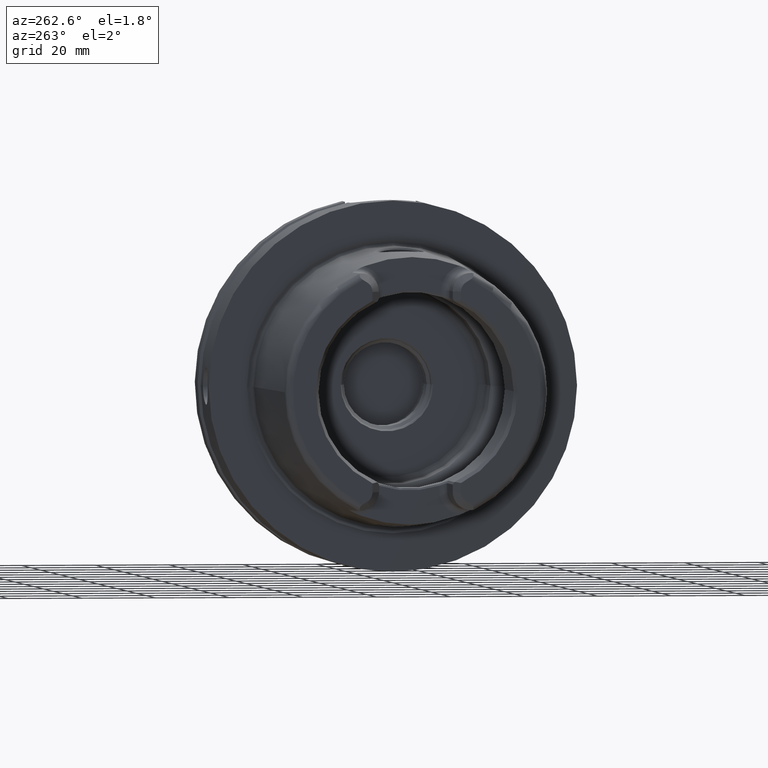
[diagram: clean part render]
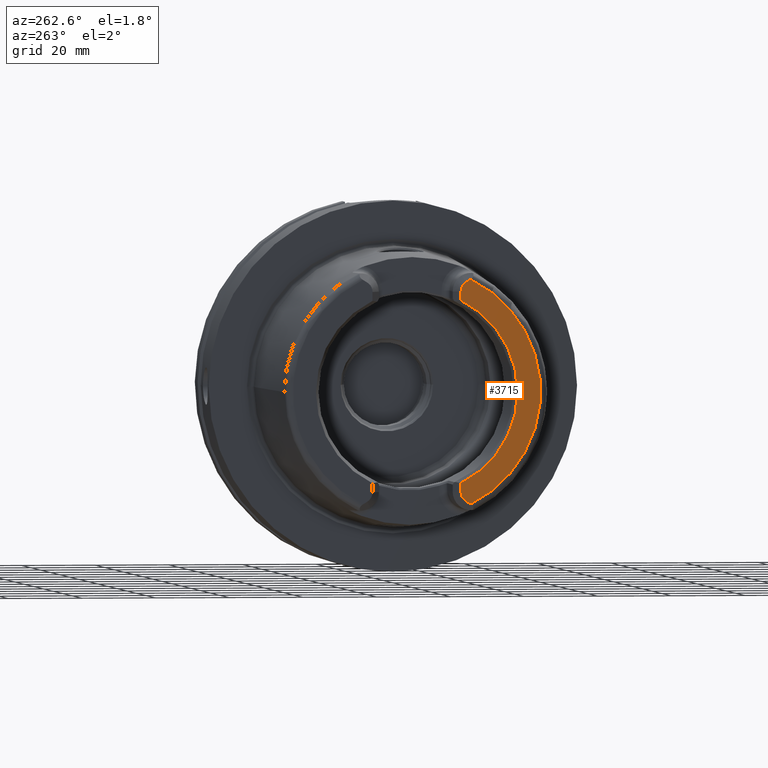
[diagram: same view with one face highlighted and labeled with its STEP entity id]
A machine part, auxiliary view. The second image highlights one B-rep face of the part: STEP entity #3715.
In plain terms, the highlighted planar face has unit normal (1, 0, 0).
Its self-contained STEP definition (entity closure, byte-faithful):
#126=DIRECTION('',(0.E0,0.E0,-1.E0));
#127=VECTOR('',#126,2.370180025047E0);
#128=CARTESIAN_POINT('',(-5.E1,-1.201E1,-2.458981997495E1));
#129=LINE('',#128,#127);
#130=DIRECTION('',(0.E0,0.E0,1.E0));
#131=VECTOR('',#130,2.370180025047E0);
#132=CARTESIAN_POINT('',(-5.E1,-1.201E1,2.458981997495E1));
#133=LINE('',#132,#131);
#134=CARTESIAN_POINT('',(-5.E1,-1.501E1,2.696E1));
#135=DIRECTION('',(1.E0,0.E0,0.E0));
#136=DIRECTION('',(0.E0,1.E0,-1.657933050107E-14));
#137=AXIS2_PLACEMENT_3D('',#134,#135,#136);
#139=DIRECTION('',(0.E0,8.533905854017E-1,-5.212720103245E-1));
#140=VECTOR('',#139,1.392150953463E0);
#141=CARTESIAN_POINT('',(-5.E1,-1.463423248617E1,3.024586108239E1));
#142=LINE('',#141,#140);
#143=DIRECTION('',(0.E0,8.533905854017E-1,5.212720103245E-1));
#144=VECTOR('',#143,1.392150953463E0);
#145=CARTESIAN_POINT('',(-5.E1,-1.463423248617E1,-3.024586108239E1));
#146=LINE('',#145,#144);
#147=CARTESIAN_POINT('',(-5.E1,-1.501E1,-2.696E1));
#148=DIRECTION('',(-1.E0,0.E0,0.E0));
#149=DIRECTION('',(0.E0,1.E0,0.E0));
#150=AXIS2_PLACEMENT_3D('',#147,#148,#149);
#197=CARTESIAN_POINT('',(-5.E1,0.E0,0.E0));
#198=DIRECTION('',(1.E0,0.E0,0.E0));
#199=DIRECTION('',(0.E0,-4.388653384185E-1,8.985528447091E-1));
#200=AXIS2_PLACEMENT_3D('',#197,#198,#199);
#359=CARTESIAN_POINT('',(-5.E1,0.E0,0.E0));
#360=DIRECTION('',(-1.E0,0.E0,0.E0));
#361=DIRECTION('',(0.E0,-4.355401503799E-1,-9.001693048572E-1));
#362=AXIS2_PLACEMENT_3D('',#359,#360,#361);
#3146=CARTESIAN_POINT('',(-5.E1,-1.201E1,2.458981997495E1));
#3147=CARTESIAN_POINT('',(-5.E1,-1.201E1,2.696E1));
#3148=VERTEX_POINT('',#3146);
#3149=VERTEX_POINT('',#3147);
#3150=CARTESIAN_POINT('',(-5.E1,-1.344618396903E1,2.952017175621E1));
#3151=VERTEX_POINT('',#3150);
#3152=CARTESIAN_POINT('',(-5.E1,-1.463423248617E1,3.024586108239E1));
#3153=VERTEX_POINT('',#3152);
#3239=CARTESIAN_POINT('',(-5.E1,-1.201E1,-2.458981997495E1));
#3240=CARTESIAN_POINT('',(-5.E1,-1.201E1,-2.696E1));
#3241=VERTEX_POINT('',#3239);
#3242=VERTEX_POINT('',#3240);
#3243=CARTESIAN_POINT('',(-5.E1,-1.344618396903E1,-2.952017175621E1));
#3244=VERTEX_POINT('',#3243);
#3245=CARTESIAN_POINT('',(-5.E1,-1.463423248617E1,-3.024586108239E1));
#3246=VERTEX_POINT('',#3245);
#3693=CARTESIAN_POINT('',(-5.E1,0.E0,0.E0));
#3694=DIRECTION('',(1.E0,0.E0,0.E0));
#3695=DIRECTION('',(0.E0,-1.E0,0.E0));
#3696=AXIS2_PLACEMENT_3D('',#3693,#3694,#3695);
#3697=PLANE('',#3696);
#3699=ORIENTED_EDGE('',*,*,#3698,.F.);
#3701=ORIENTED_EDGE('',*,*,#3700,.F.);
#3703=ORIENTED_EDGE('',*,*,#3702,.T.);
#3705=ORIENTED_EDGE('',*,*,#3704,.T.);
#3706=ORIENTED_EDGE('',*,*,#3657,.F.);
#3708=ORIENTED_EDGE('',*,*,#3707,.F.);
#3710=ORIENTED_EDGE('',*,*,#3709,.T.);
#3712=ORIENTED_EDGE('',*,*,#3711,.F.);
#3713=EDGE_LOOP('',(#3699,#3701,#3703,#3705,#3706,#3708,#3710,#3712));
#3714=FACE_OUTER_BOUND('',#3713,.F.);
#3715=ADVANCED_FACE('',(#3714),#3697,.F.);
#138=CIRCLE('',#137,3.E0);
#151=CIRCLE('',#150,3.E0);
#201=CIRCLE('',#200,2.736602540378E1);
#363=CIRCLE('',#362,3.360019156306E1);
#3657=EDGE_CURVE('',#3153,#3151,#142,.T.);
#3698=EDGE_CURVE('',#3241,#3242,#129,.T.);
#3700=EDGE_CURVE('',#3148,#3241,#201,.T.);
#3702=EDGE_CURVE('',#3148,#3149,#133,.T.);
#3704=EDGE_CURVE('',#3149,#3151,#138,.T.);
#3707=EDGE_CURVE('',#3246,#3153,#363,.T.);
#3709=EDGE_CURVE('',#3246,#3244,#146,.T.);
#3711=EDGE_CURVE('',#3242,#3244,#151,.T.);